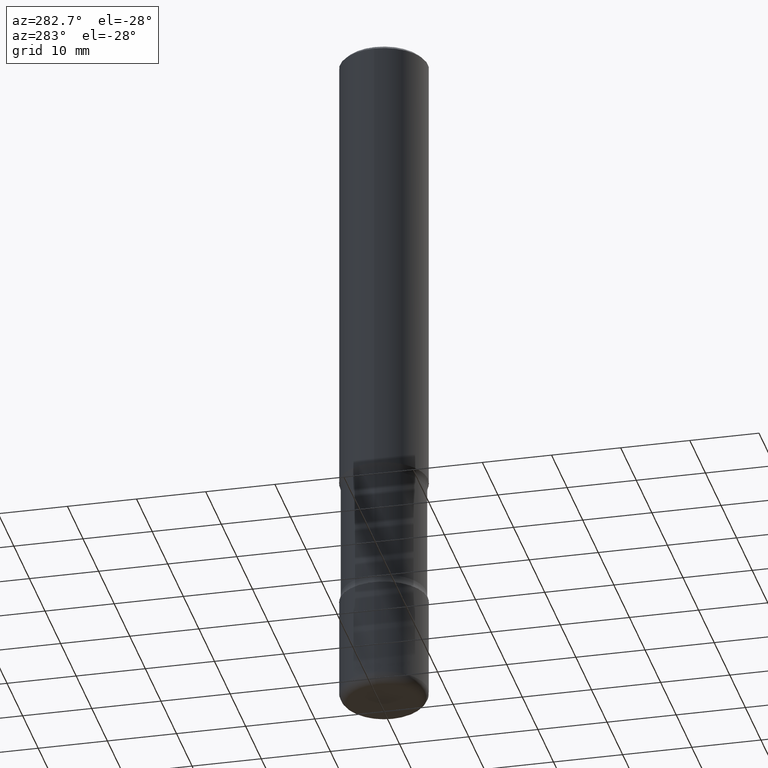
[diagram: clean part render]
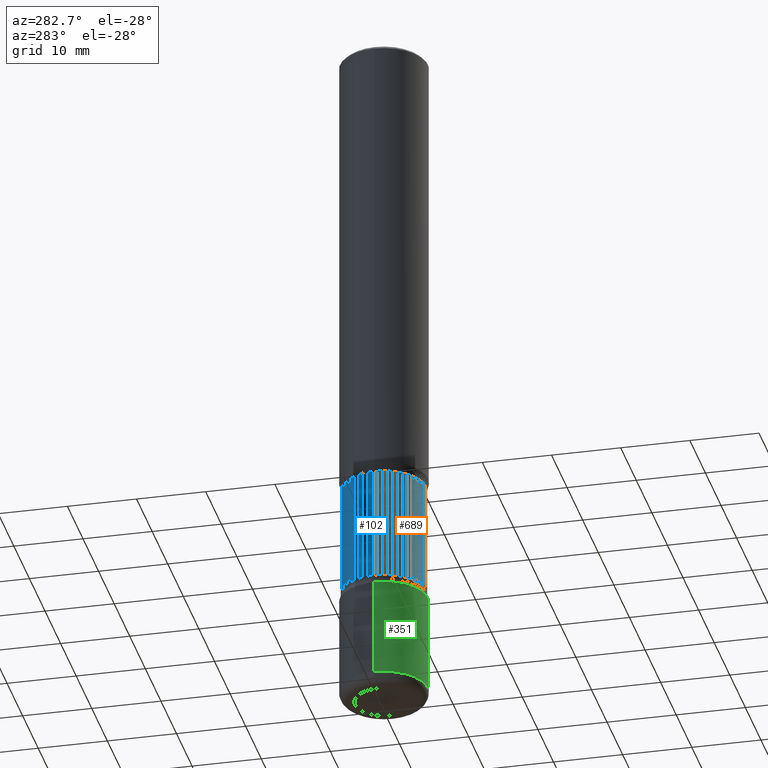
[diagram: same view with three faces highlighted in distinct colors, each labeled with its STEP entity id]
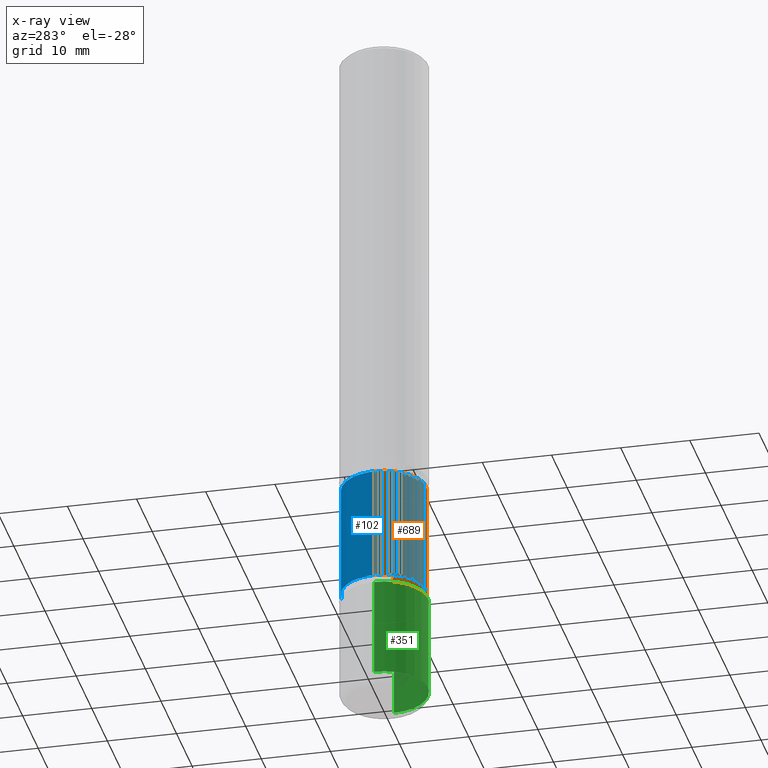
[diagram: x-ray of the same camera — body ghosted, the three highlighted faces saturated]
A machine part, auxiliary view with three faces highlighted in distinct colors.
The next image is the same camera in x-ray (body ghosted, the three faces saturated) — at least one of them is partly hidden behind the body in this view.
Their STEP definitions:

[orange] entity #689 — the highlighted cylindrical surface (partial cylindrical patch) has radius 6.096 mm, axis along (-0, 0, 1).
#9 = CARTESIAN_POINT ( 'NONE',  ( 0.2399999999999999079, -1.084104955710795999E-14, -2.625000000000000000 ) ) ;
#17 = VECTOR ( 'NONE', #495, 39.37007874015748143 ) ;
#56 = DIRECTION ( 'NONE',  ( 1.000000000000000000, -6.982962677686269077E-15, 0.000000000000000000 ) ) ;
#82 = VERTEX_POINT ( 'NONE', #806 ) ;
#125 = DIRECTION ( 'NONE',  ( 1.000000000000000000, -6.982962677686262766E-15, 0.000000000000000000 ) ) ;
#134 = EDGE_CURVE ( 'NONE', #457, #593, #182, .T. ) ;
#138 = FACE_OUTER_BOUND ( 'NONE', #146, .T. ) ;
#146 = EDGE_LOOP ( 'NONE', ( #602, #148, #151, #269 ) ) ;
#148 = ORIENTED_EDGE ( 'NONE', *, *, #134, .T. ) ;
#151 = ORIENTED_EDGE ( 'NONE', *, *, #714, .T. ) ;
#182 = CIRCLE ( 'NONE', #745, 0.2399999999999999634 ) ;
#187 = CYLINDRICAL_SURFACE ( 'NONE', #788, 0.2399999999999999079 ) ;
#190 = LINE ( 'NONE', #9, #646 ) ;
#209 = CIRCLE ( 'NONE', #680, 0.2399999999999998246 ) ;
#216 = VERTEX_POINT ( 'NONE', #505 ) ;
#247 = DIRECTION ( 'NONE',  ( -2.445468806185136597E-29, 3.491481338843145583E-15, 1.000000000000000000 ) ) ;
#269 = ORIENTED_EDGE ( 'NONE', *, *, #292, .F. ) ;
#292 = EDGE_CURVE ( 'NONE', #216, #82, #209, .T. ) ;
#316 = DIRECTION ( 'NONE',  ( -2.445468806185136877E-29, 3.491481338843145188E-15, 1.000000000000000000 ) ) ;
#362 = CARTESIAN_POINT ( 'NONE',  ( -0.2399999999999999079, -7.459835948639017807E-15, -2.625000000000000000 ) ) ;
#377 = CARTESIAN_POINT ( 'NONE',  ( 6.539158631376917547E-29, -9.336185468995560747E-15, -2.673989794855663682 ) ) ;
#396 = DIRECTION ( 'NONE',  ( -2.445468806185136597E-29, 3.491481338843145583E-15, 1.000000000000000000 ) ) ;
#457 = VERTEX_POINT ( 'NONE', #601 ) ;
#495 = DIRECTION ( 'NONE',  ( -2.445468806185136877E-29, 3.491481338843145188E-15, 1.000000000000000000 ) ) ;
#505 = CARTESIAN_POINT ( 'NONE',  ( -0.2399999999999998246, -7.509832289117164833E-15, -2.673989794855663682 ) ) ;
#562 = DIRECTION ( 'NONE',  ( -2.445468806185136597E-29, 3.491481338843145583E-15, 1.000000000000000000 ) ) ;
#580 = EDGE_CURVE ( 'NONE', #457, #216, #673, .T. ) ;
#593 = VERTEX_POINT ( 'NONE', #802 ) ;
#601 = CARTESIAN_POINT ( 'NONE',  ( -0.2399999999999999634, -9.957396338717218604E-15, -3.326010205144336318 ) ) ;
#602 = ORIENTED_EDGE ( 'NONE', *, *, #580, .F. ) ;
#641 = DIRECTION ( 'NONE',  ( 1.000000000000000000, -6.982962677686265133E-15, 0.000000000000000000 ) ) ;
#646 = VECTOR ( 'NONE', #316, 39.37007874015748143 ) ;
#673 = LINE ( 'NONE', #362, #17 ) ;
#680 = AXIS2_PLACEMENT_3D ( 'NONE', #377, #396, #641 ) ;
#689 = ADVANCED_FACE ( 'NONE', ( #138 ), #187, .T. ) ;
#714 = EDGE_CURVE ( 'NONE', #593, #82, #190, .T. ) ;
#732 = CARTESIAN_POINT ( 'NONE',  ( 8.133654205733900913E-29, -1.161270256406331354E-14, -3.326010205144336318 ) ) ;
#745 = AXIS2_PLACEMENT_3D ( 'NONE', #732, #247, #56 ) ;
#778 = CARTESIAN_POINT ( 'NONE',  ( 6.419355616235983567E-29, -9.165138514463256612E-15, -2.625000000000000000 ) ) ;
#788 = AXIS2_PLACEMENT_3D ( 'NONE', #778, #562, #125 ) ;
#802 = CARTESIAN_POINT ( 'NONE',  ( 0.2399999999999999634, -1.328861360670801692E-14, -3.326010205144336318 ) ) ;
#806 = CARTESIAN_POINT ( 'NONE',  ( 0.2399999999999998246, -1.101209651164026413E-14, -2.673989794855663682 ) ) ;

[blue] entity #102 — the highlighted cylindrical surface (partial cylindrical patch) has radius 6.096 mm, axis along (0, -0, -1).
#4 = EDGE_CURVE ( 'NONE', #780, #776, #705, .T. ) ;
#5 = VECTOR ( 'NONE', #343, 39.37007874015748143 ) ;
#12 = CARTESIAN_POINT ( 'NONE',  ( -1.646519519465068952E-15, -0.2400000000000138412, -3.994238073033860914 ) ) ;
#18 = CARTESIAN_POINT ( 'NONE',  ( 1.675911042644767869E-15, 0.2399999999999904987, -2.673989794855665014 ) ) ;
#94 = LINE ( 'NONE', #282, #5 ) ;
#102 = ADVANCED_FACE ( 'NONE', ( #545 ), #549, .T. ) ;
#132 = CARTESIAN_POINT ( 'NONE',  ( 6.537981459331545506E-29, -9.337871246365005652E-15, -2.673989794855663682 ) ) ;
#149 = EDGE_LOOP ( 'NONE', ( #265, #568, #470, #655 ) ) ;
#165 = DIRECTION ( 'NONE',  ( 2.447148057124329649E-29, -3.489076555921193226E-15, -1.000000000000000000 ) ) ;
#173 = VECTOR ( 'NONE', #372, 39.37007874015748143 ) ;
#205 = VERTEX_POINT ( 'NONE', #447 ) ;
#238 = DIRECTION ( 'NONE',  ( 6.982962677686265922E-15, 1.000000000000000000, -4.553079989440440670E-15 ) ) ;
#256 = DIRECTION ( 'NONE',  ( 2.447148057124329649E-29, -3.489076555921193226E-15, -1.000000000000000000 ) ) ;
#258 = CARTESIAN_POINT ( 'NONE',  ( -1.680822009453943183E-15, -0.2400000000000115652, -3.326010205144334986 ) ) ;
#262 = CARTESIAN_POINT ( 'NONE',  ( 1.675911042644784829E-15, 0.2399999999999883615, -3.326010205144337206 ) ) ;
#265 = ORIENTED_EDGE ( 'NONE', *, *, #775, .F. ) ;
#267 = EDGE_CURVE ( 'NONE', #205, #339, #588, .T. ) ;
#282 = CARTESIAN_POINT ( 'NONE',  ( 1.675911042644801001E-15, 0.2399999999999859746, -3.994238073033863134 ) ) ;
#339 = VERTEX_POINT ( 'NONE', #18 ) ;
#343 = DIRECTION ( 'NONE',  ( 2.447148057124329649E-29, -3.489076555921192832E-15, -1.000000000000000000 ) ) ;
#372 = DIRECTION ( 'NONE',  ( 2.447148057124329649E-29, -3.489076555921192832E-15, -1.000000000000000000 ) ) ;
#420 = DIRECTION ( 'NONE',  ( 6.982962677686265922E-15, 1.000000000000000000, -4.553079989440439092E-15 ) ) ;
#435 = CARTESIAN_POINT ( 'NONE',  ( 9.768824468197065433E-29, -1.394431856175187904E-14, -3.994238073033861802 ) ) ;
#447 = CARTESIAN_POINT ( 'NONE',  ( -1.680822009453959158E-15, -0.2400000000000091505, -2.673989794855662794 ) ) ;
#448 = AXIS2_PLACEMENT_3D ( 'NONE', #132, #256, #687 ) ;
#455 = EDGE_CURVE ( 'NONE', #339, #776, #94, .T. ) ;
#470 = ORIENTED_EDGE ( 'NONE', *, *, #455, .T. ) ;
#473 = CARTESIAN_POINT ( 'NONE',  ( 8.133571939574879425E-29, -1.161282037388533162E-14, -3.326010205144336318 ) ) ;
#511 = AXIS2_PLACEMENT_3D ( 'NONE', #473, #165, #420 ) ;
#545 = FACE_OUTER_BOUND ( 'NONE', #149, .T. ) ;
#549 = CYLINDRICAL_SURFACE ( 'NONE', #678, 0.2399999999999999079 ) ;
#568 = ORIENTED_EDGE ( 'NONE', *, *, #267, .T. ) ;
#569 = LINE ( 'NONE', #12, #173 ) ;
#588 = CIRCLE ( 'NONE', #448, 0.2399999999999998246 ) ;
#655 = ORIENTED_EDGE ( 'NONE', *, *, #4, .F. ) ;
#678 = AXIS2_PLACEMENT_3D ( 'NONE', #435, #798, #238 ) ;
#687 = DIRECTION ( 'NONE',  ( 6.982962677686265922E-15, 1.000000000000000000, -4.553079989440442247E-15 ) ) ;
#705 = CIRCLE ( 'NONE', #511, 0.2399999999999999634 ) ;
#775 = EDGE_CURVE ( 'NONE', #205, #780, #569, .T. ) ;
#776 = VERTEX_POINT ( 'NONE', #262 ) ;
#780 = VERTEX_POINT ( 'NONE', #258 ) ;
#798 = DIRECTION ( 'NONE',  ( 2.447148057124329649E-29, -3.489076555921193226E-15, -1.000000000000000000 ) ) ;

[green] entity #351 — the highlighted cylindrical surface (partial cylindrical patch) has radius 6.35 mm, axis along (-0, 0, 1).
#89 = ORIENTED_EDGE ( 'NONE', *, *, #305, .T. ) ;
#95 = VERTEX_POINT ( 'NONE', #560 ) ;
#97 = DIRECTION ( 'NONE',  ( 1.000000000000000000, -6.982962677686266711E-15, 4.876176775795935793E-29 ) ) ;
#100 = DIRECTION ( 'NONE',  ( -2.445468806185136877E-29, 3.491481338843145188E-15, 1.000000000000000000 ) ) ;
#141 = AXIS2_PLACEMENT_3D ( 'NONE', #770, #414, #97 ) ;
#143 = FACE_OUTER_BOUND ( 'NONE', #272, .T. ) ;
#157 = ORIENTED_EDGE ( 'NONE', *, *, #727, .T. ) ;
#161 = CARTESIAN_POINT ( 'NONE',  ( -0.2500000000000000000, 1.776356839400250465E-15, -1.229733772563726445E-29 ) ) ;
#191 = DIRECTION ( 'NONE',  ( 1.000000000000000000, -6.982962677686263555E-15, 0.000000000000000000 ) ) ;
#243 = CARTESIAN_POINT ( 'NONE',  ( 8.253457220874836014E-29, -1.178374951859561452E-14, -3.375000000000000000 ) ) ;
#261 = VECTOR ( 'NONE', #100, 39.37007874015748143 ) ;
#272 = EDGE_LOOP ( 'NONE', ( #631, #89, #157, #294 ) ) ;
#279 = CYLINDRICAL_SURFACE ( 'NONE', #141, 0.2500000000000000000 ) ;
#294 = ORIENTED_EDGE ( 'NONE', *, *, #557, .F. ) ;
#305 = EDGE_CURVE ( 'NONE', #95, #512, #746, .T. ) ;
#351 = ADVANCED_FACE ( 'NONE', ( #143 ), #279, .T. ) ;
#365 = DIRECTION ( 'NONE',  ( -2.445468806185136597E-29, 3.491481338843145583E-15, 1.000000000000000000 ) ) ;
#376 = CARTESIAN_POINT ( 'NONE',  ( -0.2500000000000000000, -1.099373615741855222E-14, -3.375000000000000000 ) ) ;
#381 = DIRECTION ( 'NONE',  ( -2.445468806185136877E-29, 3.491481338843145188E-15, 1.000000000000000000 ) ) ;
#391 = CARTESIAN_POINT ( 'NONE',  ( 9.635147096369438236E-29, -1.375643647504199401E-14, -3.939999999999999947 ) ) ;
#407 = AXIS2_PLACEMENT_3D ( 'NONE', #243, #365, #665 ) ;
#414 = DIRECTION ( 'NONE',  ( -2.445468806185136597E-29, 3.491481338843145583E-15, 1.000000000000000000 ) ) ;
#419 = EDGE_CURVE ( 'NONE', #95, #713, #782, .T. ) ;
#506 = LINE ( 'NONE', #633, #553 ) ;
#512 = VERTEX_POINT ( 'NONE', #805 ) ;
#553 = VECTOR ( 'NONE', #381, 39.37007874015748143 ) ;
#557 = EDGE_CURVE ( 'NONE', #713, #587, #758, .T. ) ;
#560 = CARTESIAN_POINT ( 'NONE',  ( -0.2499999999999999167, -1.198007963564174513E-14, -3.939999999999999947 ) ) ;
#587 = VERTEX_POINT ( 'NONE', #742 ) ;
#631 = ORIENTED_EDGE ( 'NONE', *, *, #419, .F. ) ;
#633 = CARTESIAN_POINT ( 'NONE',  ( 0.2500000000000000000, -1.745740669421566678E-15, 1.219044193948983948E-29 ) ) ;
#665 = DIRECTION ( 'NONE',  ( 1.000000000000000000, -6.982962677686262766E-15, 0.000000000000000000 ) ) ;
#713 = VERTEX_POINT ( 'NONE', #376 ) ;
#727 = EDGE_CURVE ( 'NONE', #512, #587, #506, .T. ) ;
#742 = CARTESIAN_POINT ( 'NONE',  ( 0.2500000000000000000, -1.352949018801718119E-14, -3.375000000000000000 ) ) ;
#746 = CIRCLE ( 'NONE', #786, 0.2499999999999999722 ) ;
#754 = DIRECTION ( 'NONE',  ( -2.445468806185136597E-29, 3.491481338843145583E-15, 1.000000000000000000 ) ) ;
#758 = CIRCLE ( 'NONE', #407, 0.2500000000000000000 ) ;
#770 = CARTESIAN_POINT ( 'NONE',  ( 0.000000000000000000, 0.000000000000000000, 0.000000000000000000 ) ) ;
#782 = LINE ( 'NONE', #161, #261 ) ;
#786 = AXIS2_PLACEMENT_3D ( 'NONE', #391, #754, #191 ) ;
#805 = CARTESIAN_POINT ( 'NONE',  ( 0.2499999999999999167, -1.550217714446356069E-14, -3.939999999999999947 ) ) ;